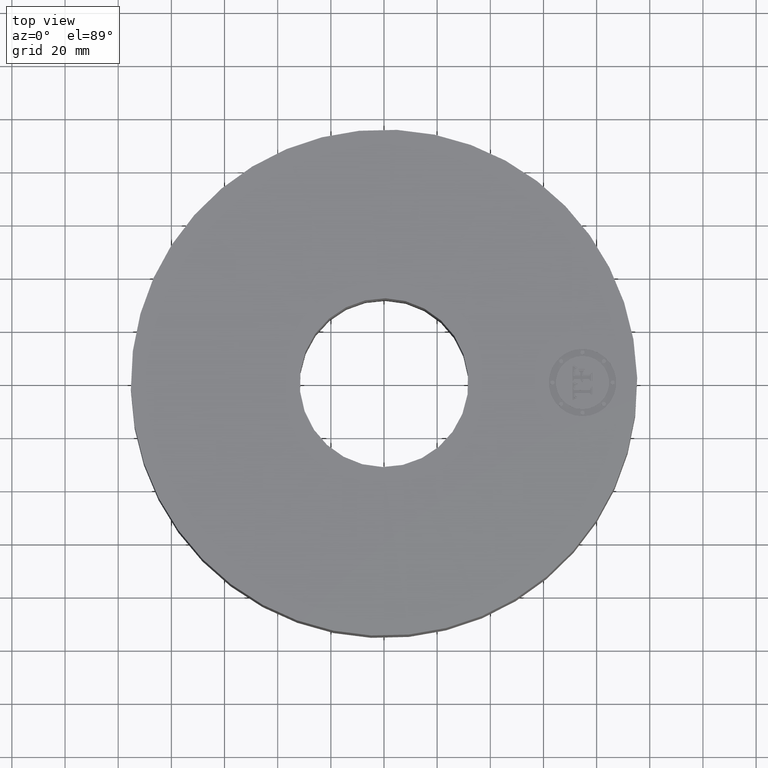
[diagram: clean part render]
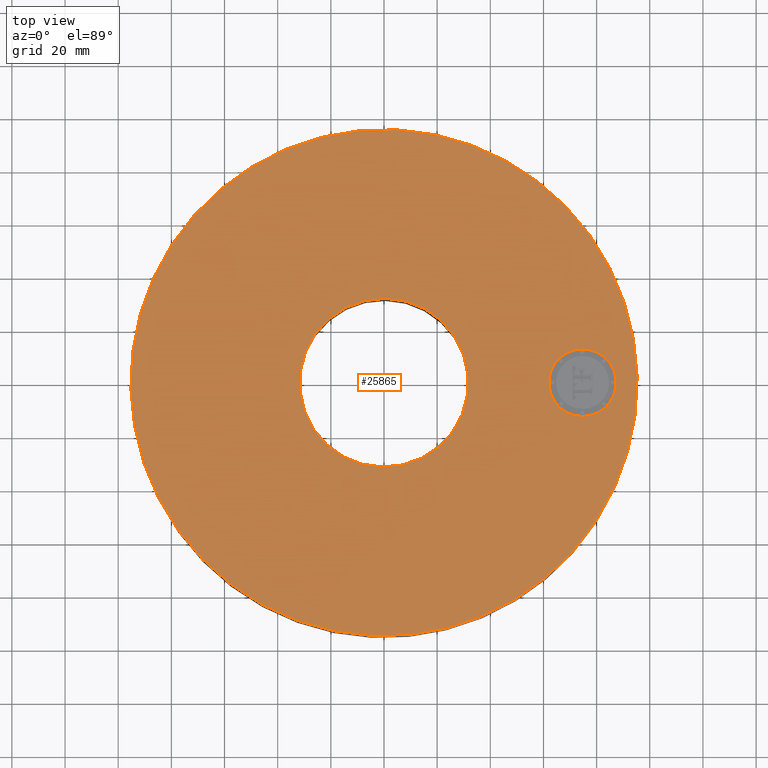
[diagram: same view with one face highlighted and labeled with its STEP entity id]
A machine part, top view. The second image highlights one B-rep face of the part: STEP entity #25865.
In plain terms, the highlighted planar face has unit normal (0, 0, -1).
Its self-contained STEP definition (entity closure, byte-faithful):
#3417=AXIS2_PLACEMENT_3D('Circle Axis2P3D',#3415,#3416,$) ;
#3436=AXIS2_PLACEMENT_3D('Circle Axis2P3D',#3434,#3435,$) ;
#4511=AXIS2_PLACEMENT_3D('Circle Axis2P3D',#4509,#4510,$) ;
#4537=AXIS2_PLACEMENT_3D('Circle Axis2P3D',#4535,#4536,$) ;
#25837=AXIS2_PLACEMENT_3D('Plane Axis2P3D',#25834,#25835,#25836) ;
#25849=AXIS2_PLACEMENT_3D('Circle Axis2P3D',#25847,#25848,$) ;
#25858=AXIS2_PLACEMENT_3D('Circle Axis2P3D',#25856,#25857,$) ;
#3412=CARTESIAN_POINT('Vertex',(-1.79784576977,-3.2909346071,2.00000000001)) ;
#3415=CARTESIAN_POINT('Axis2P3D Location',(0.,0.,2.00000000001)) ;
#3419=CARTESIAN_POINT('Vertex',(1.79784576977,3.2909346071,2.00000000001)) ;
#3434=CARTESIAN_POINT('Axis2P3D Location',(0.,0.,2.00000000001)) ;
#4509=CARTESIAN_POINT('Axis2P3D Location',(0.,0.,2.00000000001)) ;
#4513=CARTESIAN_POINT('Vertex',(0.599281923258,1.09697820237,2.00000000001)) ;
#4515=CARTESIAN_POINT('Vertex',(-0.599281923258,-1.09697820237,2.00000000001)) ;
#4535=CARTESIAN_POINT('Axis2P3D Location',(0.,0.,2.00000000001)) ;
#25834=CARTESIAN_POINT('Axis2P3D Location',(0.,1.25000000001,2.00000000001)) ;
#25847=CARTESIAN_POINT('Axis2P3D Location',(2.94000000001,0.,2.00000000001)) ;
#25851=CARTESIAN_POINT('Vertex',(2.94000000001,-0.499999995002,2.00000000001)) ;
#25853=CARTESIAN_POINT('Vertex',(2.94000000001,0.499999995002,2.00000000001)) ;
#25856=CARTESIAN_POINT('Axis2P3D Location',(2.94000000001,0.,2.00000000001)) ;
#3416=DIRECTION('Axis2P3D Direction',(0.,0.,-0.0393700787402)) ;
#3435=DIRECTION('Axis2P3D Direction',(0.,0.,-0.0393700787402)) ;
#4510=DIRECTION('Axis2P3D Direction',(0.,0.,-0.0393700787402)) ;
#4536=DIRECTION('Axis2P3D Direction',(0.,0.,-0.0393700787402)) ;
#25835=DIRECTION('Axis2P3D Direction',(0.,0.,-0.0393700787402)) ;
#25836=DIRECTION('Axis2P3D XDirection',(0.0393700787402,0.,0.)) ;
#25848=DIRECTION('Axis2P3D Direction',(0.,0.,-0.0393700787402)) ;
#25857=DIRECTION('Axis2P3D Direction',(0.,0.,-0.0393700787402)) ;
#25840=ORIENTED_EDGE('',*,*,#3438,.F.) ;
#25841=ORIENTED_EDGE('',*,*,#3421,.F.) ;
#25844=ORIENTED_EDGE('',*,*,#4539,.T.) ;
#25845=ORIENTED_EDGE('',*,*,#4517,.T.) ;
#25862=ORIENTED_EDGE('',*,*,#25855,.F.) ;
#25863=ORIENTED_EDGE('',*,*,#25860,.F.) ;
#25846=FACE_BOUND('',#25843,.T.) ;
#25864=FACE_BOUND('',#25861,.T.) ;
#25865=ADVANCED_FACE('PartBody',(#25842,#25846,#25864),#25838,.F.) ;
#3418=CIRCLE('generated circle',#3417,3.75000000002) ;
#3437=CIRCLE('generated circle',#3436,3.75000000002) ;
#4512=CIRCLE('generated circle',#4511,1.25000000001) ;
#4538=CIRCLE('generated circle',#4537,1.25000000001) ;
#25850=CIRCLE('generated circle',#25849,0.499999995002) ;
#25859=CIRCLE('generated circle',#25858,0.499999995002) ;
#3421=EDGE_CURVE('',#3413,#3420,#3418,.T.) ;
#3438=EDGE_CURVE('',#3420,#3413,#3437,.T.) ;
#4517=EDGE_CURVE('',#4514,#4516,#4512,.T.) ;
#4539=EDGE_CURVE('',#4516,#4514,#4538,.T.) ;
#25855=EDGE_CURVE('',#25852,#25854,#25850,.F.) ;
#25860=EDGE_CURVE('',#25854,#25852,#25859,.F.) ;
#25839=EDGE_LOOP('',(#25840,#25841)) ;
#25843=EDGE_LOOP('',(#25844,#25845)) ;
#25861=EDGE_LOOP('',(#25862,#25863)) ;
#25842=FACE_OUTER_BOUND('',#25839,.T.) ;
#25838=PLANE('',#25837) ;
#3413=VERTEX_POINT('',#3412) ;
#3420=VERTEX_POINT('',#3419) ;
#4514=VERTEX_POINT('',#4513) ;
#4516=VERTEX_POINT('',#4515) ;
#25852=VERTEX_POINT('',#25851) ;
#25854=VERTEX_POINT('',#25853) ;